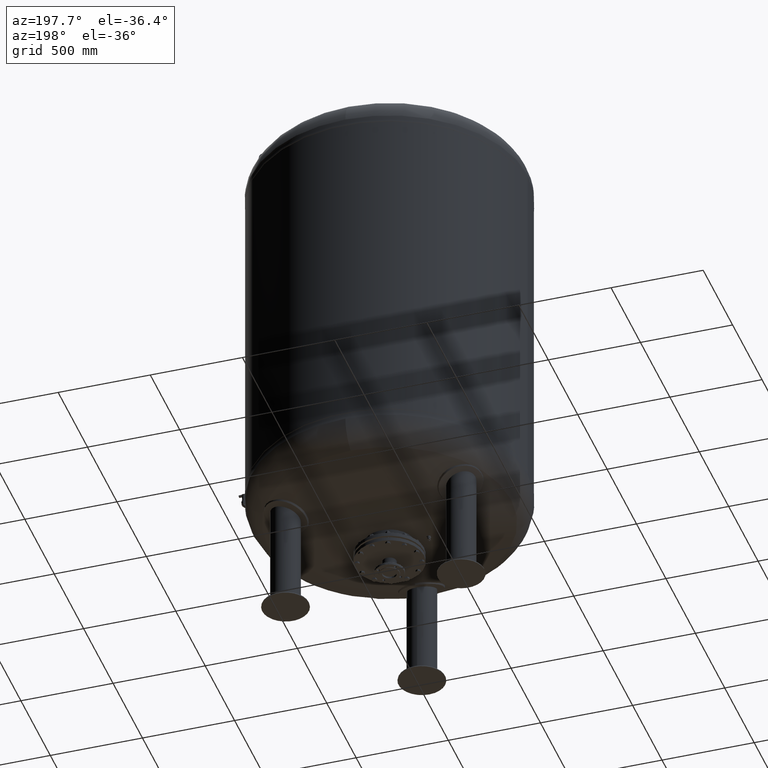
[diagram: clean part render]
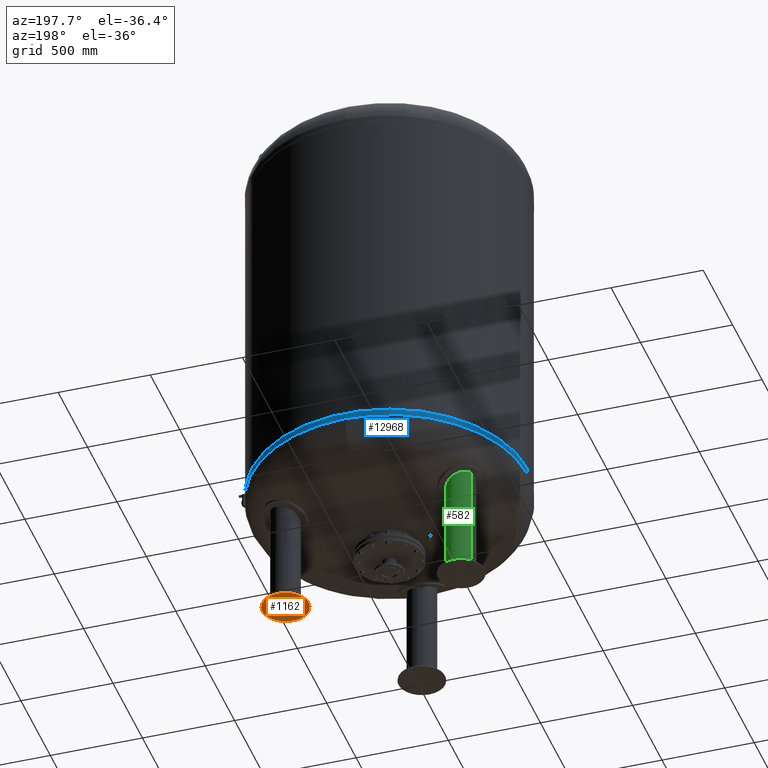
[diagram: same view with three faces highlighted in distinct colors, each labeled with its STEP entity id]
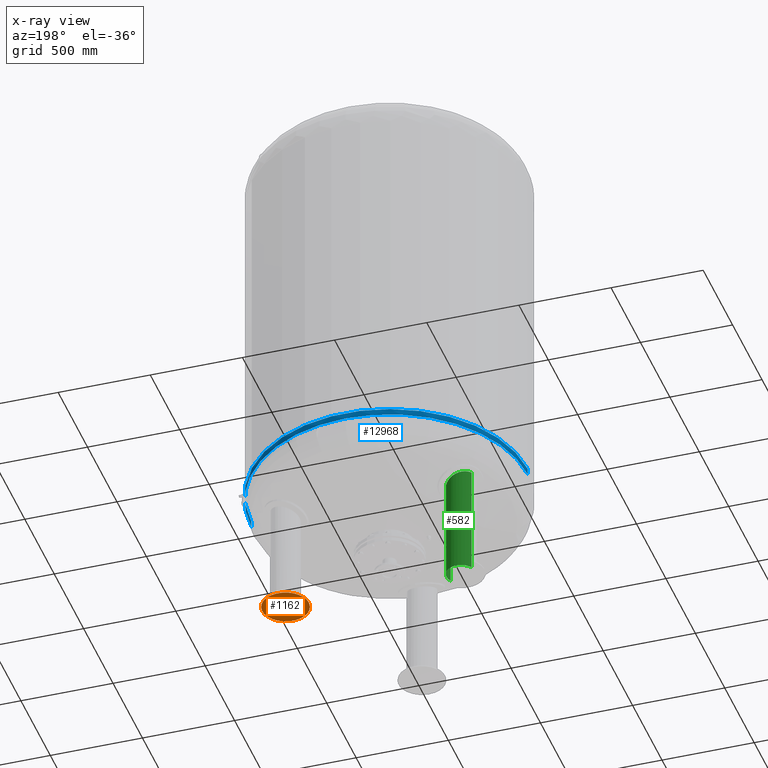
[diagram: x-ray of the same camera — body ghosted, the three highlighted faces saturated]
A machine part, auxiliary view with three faces highlighted in distinct colors.
The next image is the same camera in x-ray (body ghosted, the three faces saturated) — at least one of them is partly hidden behind the body in this view.
Their STEP definitions:

[orange] entity #1162 — the highlighted spherical surface has radius 570 mm.
#650=CARTESIAN_POINT('',(585.702740850056100,338.155635094881400,14.171372612881115));
#651=VERTEX_POINT('',#650);
#660=CARTESIAN_POINT('',(366.925203312826450,211.844364905118430,14.171372612881102));
#661=VERTEX_POINT('',#660);
#662=CARTESIAN_POINT('',(476.313972081441250,274.999999999999890,14.171372612881115));
#663=DIRECTION('',(0.0,0.0,-1.0));
#664=DIRECTION('',(0.866025403784439,0.500000000000000,0.0));
#665=AXIS2_PLACEMENT_3D('',#662,#663,#664);
#666=CIRCLE('',#665,126.311270189762990);
#667=EDGE_CURVE('',#661,#651,#666,.T.);
#1143=CARTESIAN_POINT('',(476.313972081441250,274.999999999999890,14.171372612881115));
#1144=DIRECTION('',(0.0,0.0,-1.0));
#1145=DIRECTION('',(0.866025403784439,0.500000000000000,0.0));
#1146=AXIS2_PLACEMENT_3D('',#1143,#1144,#1145);
#1147=CIRCLE('',#1146,126.311270189762990);
#1148=EDGE_CURVE('',#651,#661,#1147,.T.);
#1153=CARTESIAN_POINT('',(476.313972081441310,274.999999999999770,570.0));
#1154=DIRECTION('',(0.500000000000000,-0.866025403784439,-1.836970E-016));
#1155=DIRECTION('',(0.866025403784439,0.500000000000000,0.0));
#1156=AXIS2_PLACEMENT_3D('',#1153,#1154,#1155);
#1157=SPHERICAL_SURFACE('',#1156,570.0);
#1158=ORIENTED_EDGE('',*,*,#1148,.T.);
#1159=ORIENTED_EDGE('',*,*,#667,.T.);
#1160=EDGE_LOOP('',(#1158,#1159));
#1161=FACE_OUTER_BOUND('',#1160,.T.);
#1162=ADVANCED_FACE('',(#1161),#1157,.T.);

[blue] entity #12968 — the highlighted cylindrical surface (partial cylindrical patch) has radius 750 mm, axis along (-0, -0, 1).
#12918=CARTESIAN_POINT('',(-5.374415E-014,-5.742715E-014,801.618833707949080));
#12919=DIRECTION('',(-1.719159E-016,-1.836970E-016,1.0));
#12920=DIRECTION('',(-1.0,0.0,0.0));
#12921=AXIS2_PLACEMENT_3D('',#12918,#12919,#12920);
#12922=CYLINDRICAL_SURFACE('',#12921,750.0);
#12923=CARTESIAN_POINT('',(-750.0,-6.062002E-014,818.999999999999890));
#12924=VERTEX_POINT('',#12923);
#12925=CARTESIAN_POINT('',(-750.0,-5.423428E-014,784.237667415897930));
#12926=VERTEX_POINT('',#12925);
#12927=CARTESIAN_POINT('',(-750.0,-6.062002E-014,818.999999999999890));
#12928=DIRECTION('',(0.0,0.0,-1.0));
#12929=VECTOR('',#12928,34.762332584101955);
#12930=LINE('',#12927,#12929);
#12931=EDGE_CURVE('',#12924,#12926,#12930,.T.);
#12932=ORIENTED_EDGE('',*,*,#12931,.F.);
#12933=CARTESIAN_POINT('',(750.0,3.122546E-014,819.000000000000110));
#12934=VERTEX_POINT('',#12933);
#12935=CARTESIAN_POINT('',(-5.673224E-014,-6.062002E-014,819.0));
#12936=DIRECTION('',(0.0,0.0,1.0));
#12937=DIRECTION('',(-1.0,0.0,0.0));
#12938=AXIS2_PLACEMENT_3D('',#12935,#12936,#12937);
#12939=CIRCLE('',#12938,750.0);
#12940=EDGE_CURVE('',#12934,#12924,#12939,.T.);
#12941=ORIENTED_EDGE('',*,*,#12940,.F.);
#12942=CARTESIAN_POINT('',(750.0,3.761120E-014,784.237667415898160));
#12943=VERTEX_POINT('',#12942);
#12944=CARTESIAN_POINT('',(750.0,3.122546E-014,819.000000000000110));
#12945=DIRECTION('',(0.0,0.0,-1.0));
#12946=VECTOR('',#12945,34.762332584101955);
#12947=LINE('',#12944,#12946);
#12948=EDGE_CURVE('',#12934,#12943,#12947,.T.);
#12949=ORIENTED_EDGE('',*,*,#12948,.T.);
#12950=CARTESIAN_POINT('',(-1.628998E-013,750.0,784.237667415898270));
#12951=VERTEX_POINT('',#12950);
#12952=CARTESIAN_POINT('',(-5.075605E-014,-5.423428E-014,784.237667415898160));
#12953=DIRECTION('',(0.0,0.0,1.0));
#12954=DIRECTION('',(-1.0,0.0,0.0));
#12955=AXIS2_PLACEMENT_3D('',#12952,#12953,#12954);
#12956=CIRCLE('',#12955,750.0);
#12957=EDGE_CURVE('',#12943,#12951,#12956,.T.);
#12958=ORIENTED_EDGE('',*,*,#12957,.T.);
#12959=CARTESIAN_POINT('',(-5.075605E-014,-5.423428E-014,784.237667415898160));
#12960=DIRECTION('',(0.0,0.0,1.0));
#12961=DIRECTION('',(-1.0,0.0,0.0));
#12962=AXIS2_PLACEMENT_3D('',#12959,#12960,#12961);
#12963=CIRCLE('',#12962,750.0);
#12964=EDGE_CURVE('',#12951,#12926,#12963,.T.);
#12965=ORIENTED_EDGE('',*,*,#12964,.T.);
#12966=EDGE_LOOP('',(#12932,#12941,#12949,#12958,#12965));
#12967=FACE_OUTER_BOUND('',#12966,.T.);
#12968=ADVANCED_FACE('',(#12967),#12922,.T.);

[green] entity #582 — the highlighted cylindrical surface (edge-blend (fillet) strip) has radius 79.5 mm, axis along (-0, -0, -1).
#172=CARTESIAN_POINT('',(-545.162991682303870,314.750000000000170,11.631170282581067));
#173=VERTEX_POINT('',#172);
#174=CARTESIAN_POINT('',(-545.162991682304440,314.750000000000570,619.974328976416250));
#175=VERTEX_POINT('',#174);
#176=CARTESIAN_POINT('',(-545.162991682303870,314.750000000000170,11.631170282581067));
#177=DIRECTION('',(0.0,0.0,1.0));
#178=VECTOR('',#177,608.343158693835220);
#179=LINE('',#176,#178);
#180=EDGE_CURVE('',#173,#175,#179,.T.);
#182=CARTESIAN_POINT('',(-407.464952480578180,235.250000000000170,11.631170282581067));
#183=VERTEX_POINT('',#182);
#191=CARTESIAN_POINT('',(-407.464952480578180,235.250000000000260,557.801446445446910));
#192=VERTEX_POINT('',#191);
#193=CARTESIAN_POINT('',(-407.464952480578180,235.250000000000170,11.631170282581067));
#194=DIRECTION('',(0.0,0.0,1.0));
#195=VECTOR('',#194,546.170276162865890);
#196=LINE('',#193,#195);
#197=EDGE_CURVE('',#183,#192,#196,.T.);
#279=CARTESIAN_POINT('',(-435.923993297311260,343.475540259406440,588.259208461118190));
#280=VERTEX_POINT('',#279);
#281=CARTESIAN_POINT('',(-435.923993297311260,343.475540259406440,588.259208461118190));
#282=CARTESIAN_POINT('',(-428.294244079324470,338.975168186761320,584.797146556691930));
#283=CARTESIAN_POINT('',(-421.432219721340400,333.208904948055760,581.360502151041940));
#284=CARTESIAN_POINT('',(-408.717320989592170,318.197262877139220,574.174236989335670));
#285=CARTESIAN_POINT('',(-403.428779549836460,308.594560981841990,570.549958778381670));
#286=CARTESIAN_POINT('',(-397.284632061759850,288.348202161642970,564.600364334074580));
#287=CARTESIAN_POINT('',(-396.189586487437450,278.010947247717750,562.252334812652180));
#288=CARTESIAN_POINT('',(-398.071116691458940,257.806862096045790,559.003880738072780));
#289=CARTESIAN_POINT('',(-400.811446048780450,248.180804466063310,558.070588206412370));
#290=CARTESIAN_POINT('',(-405.983358000271100,237.903174880540800,557.818088260262240));
#291=CARTESIAN_POINT('',(-406.705844140872730,236.564814212819360,557.801446445446910));
#292=CARTESIAN_POINT('',(-407.464952480578180,235.250000000000260,557.801446445446910));
#293=B_SPLINE_CURVE_WITH_KNOTS('',3,(#281,#282,#283,#284,#285,#286,#287,#288,#289,#290,#291,#292),.UNSPECIFIED.,.F.,.U.,(4,2,2,2,2,4),(13.058196146459970,15.908544671985489,19.326182717890447,22.493256912797680,25.489178793934588,25.946274642103891),.UNSPECIFIED.);
#294=EDGE_CURVE('',#280,#192,#293,.T.);
#545=CARTESIAN_POINT('',(-545.162991682303870,314.750000000000230,619.974328976416470));
#546=CARTESIAN_POINT('',(-540.366890598841110,323.057090754793250,619.974328976416020));
#547=CARTESIAN_POINT('',(-534.131807051763080,330.386322806354490,619.280247607236110));
#548=CARTESIAN_POINT('',(-519.299997618791620,342.575536920710310,616.585819491894090));
#549=CARTESIAN_POINT('',(-510.836973519929240,347.237482487707440,614.592514188904490));
#550=CARTESIAN_POINT('',(-492.270020921124510,353.538138546992400,609.453155597640030));
#551=CARTESIAN_POINT('',(-482.267074518463970,354.891128663840110,606.286372499794770));
#552=CARTESIAN_POINT('',(-461.710332890184700,353.875417057553700,599.055880090259170));
#553=CARTESIAN_POINT('',(-451.315557892037930,351.203205063835870,594.989155554557560));
#554=CARTESIAN_POINT('',(-439.795744250857180,345.651357521946810,589.995750597807050));
#555=CARTESIAN_POINT('',(-437.835763685399060,344.603189126760750,589.126690109794940));
#556=CARTESIAN_POINT('',(-435.923993297311260,343.475540259406440,588.259208461118190));
#557=B_SPLINE_CURVE_WITH_KNOTS('',3,(#545,#546,#547,#548,#549,#550,#551,#552,#553,#554,#555,#556),.UNSPECIFIED.,.F.,.U.,(4,2,2,2,2,4),(0.0,2.877660650077480,5.813761654146234,8.951189755024860,12.343990246483170,13.058196146459970),.UNSPECIFIED.);
#558=EDGE_CURVE('',#175,#280,#557,.T.);
#564=CARTESIAN_POINT('',(-476.313972081441020,275.000000000000170,15.815585141290533));
#565=DIRECTION('',(-9.184851E-017,-1.590863E-016,-1.0));
#566=DIRECTION('',(-0.866025403784439,0.500000000000000,0.0));
#567=AXIS2_PLACEMENT_3D('',#564,#565,#566);
#568=CYLINDRICAL_SURFACE('',#567,79.500000000000000);
#569=ORIENTED_EDGE('',*,*,#180,.T.);
#570=ORIENTED_EDGE('',*,*,#558,.T.);
#571=ORIENTED_EDGE('',*,*,#294,.T.);
#572=ORIENTED_EDGE('',*,*,#197,.F.);
#573=CARTESIAN_POINT('',(-476.313972081441020,275.000000000000170,11.631170282581067));
#574=DIRECTION('',(0.0,0.0,-1.0));
#575=DIRECTION('',(-0.866025403784439,0.500000000000000,0.0));
#576=AXIS2_PLACEMENT_3D('',#573,#574,#575);
#577=CIRCLE('',#576,79.500000000000000);
#578=EDGE_CURVE('',#173,#183,#577,.T.);
#579=ORIENTED_EDGE('',*,*,#578,.F.);
#580=EDGE_LOOP('',(#569,#570,#571,#572,#579));
#581=FACE_OUTER_BOUND('',#580,.T.);
#582=ADVANCED_FACE('',(#581),#568,.T.);